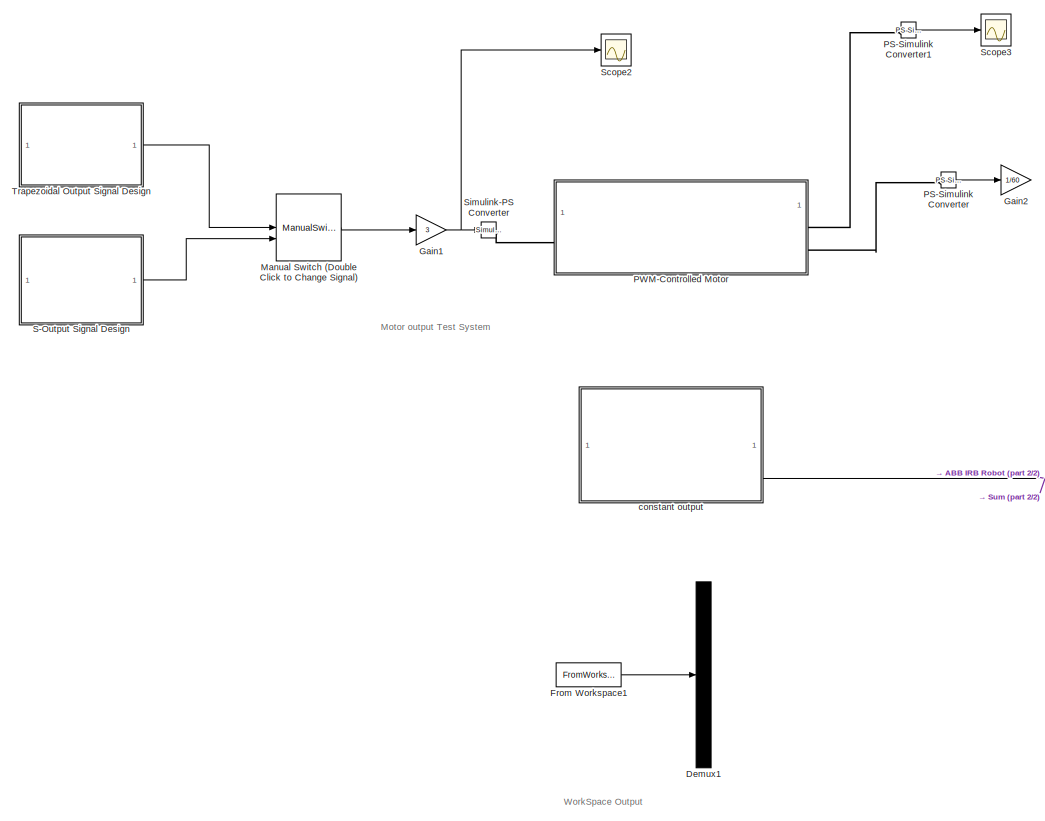
[diagram: root canvas - part 1/2, left side, full height]
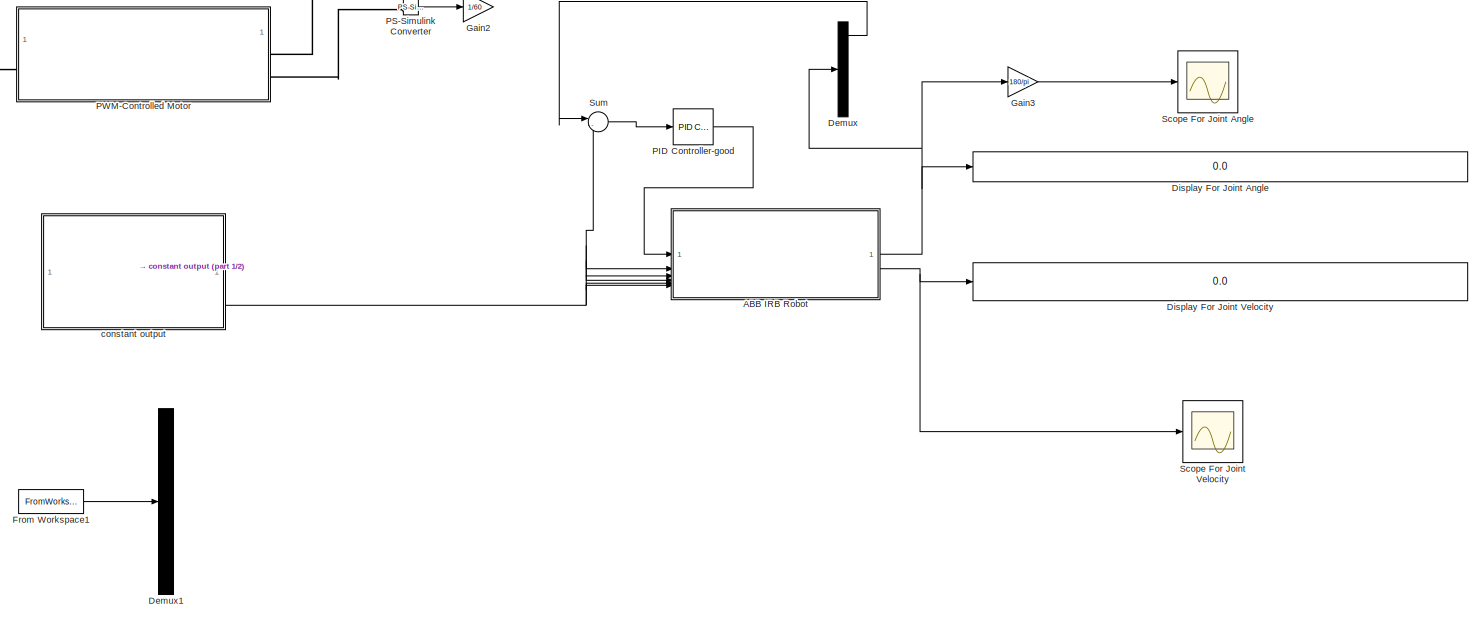
[diagram: root canvas - part 2/2, most of the canvas]
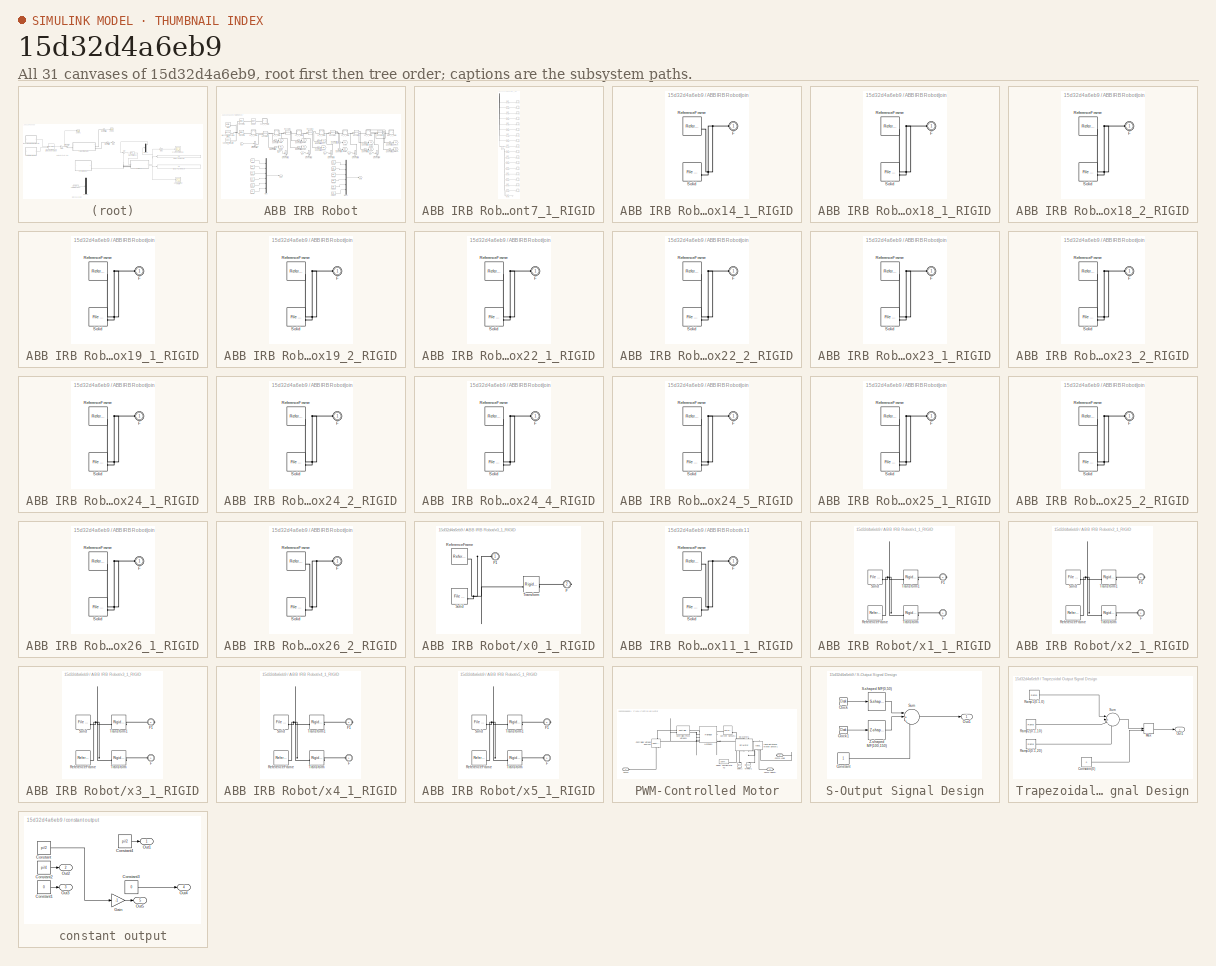
[diagram: thumbnail index - all 31 canvases of the model, root first then tree order]
MODEL slx_15d32d4a6eb9
KIND model
CONFIG AbsTol = auto
CONFIG EnableMultiTasking = off
CONFIG FixedStep = 0.02
CONFIG MaxStep = 0.01
CONFIG MinStep = auto
CONFIG RelTol = 1e-3
CONFIG SampleTimeConstraint = Unconstrained
CONFIG SolverName = VariableStepAuto
CONFIG StartTime = 0.0
CONFIG StopTime = 3
WORKSPACE source: external: MATLAB File  (data not in archive)
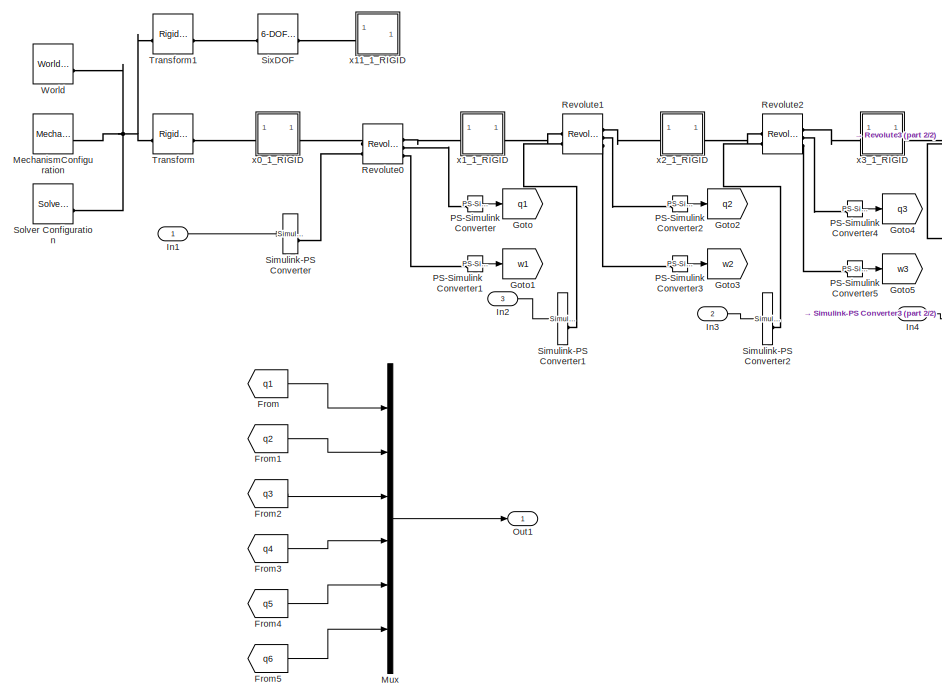
[diagram: ABB IRB Robot - part 1/2, left side, full height]
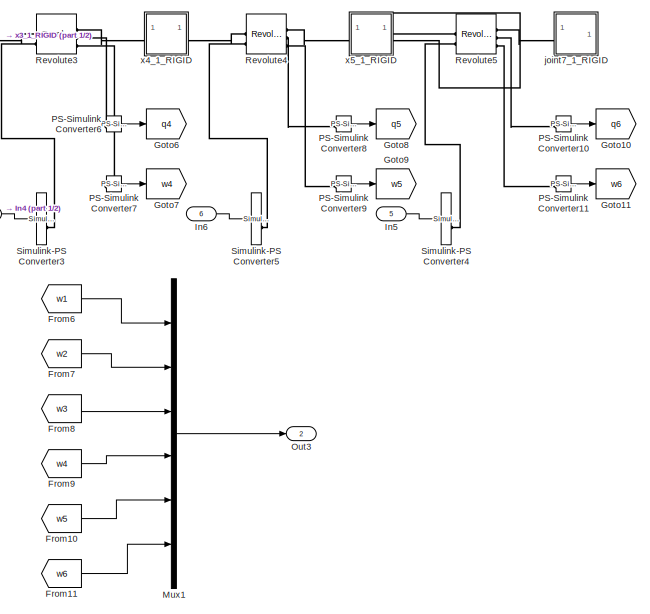
[diagram: ABB IRB Robot - part 2/2, right side, full height]
BLOCK [SubSystem] ABB IRB Robot
BLOCK [From] ABB IRB Robot/From
  GotoTag = q1
BLOCK [From] ABB IRB Robot/From1
  GotoTag = q2
BLOCK [From] ABB IRB Robot/From10
  GotoTag = w5
BLOCK [From] ABB IRB Robot/From11
  GotoTag = w6
BLOCK [From] ABB IRB Robot/From2
  GotoTag = q3
BLOCK [From] ABB IRB Robot/From3
  GotoTag = q4
BLOCK [From] ABB IRB Robot/From4
  GotoTag = q5
BLOCK [From] ABB IRB Robot/From5
  GotoTag = q6
BLOCK [From] ABB IRB Robot/From6
  GotoTag = w1
BLOCK [From] ABB IRB Robot/From7
  GotoTag = w2
BLOCK [From] ABB IRB Robot/From8
  GotoTag = w3
BLOCK [From] ABB IRB Robot/From9
  GotoTag = w4
BLOCK [Goto] ABB IRB Robot/Goto
  GotoTag = q1
BLOCK [Goto] ABB IRB Robot/Goto1
  GotoTag = w1
BLOCK [Goto] ABB IRB Robot/Goto10
  GotoTag = q6
BLOCK [Goto] ABB IRB Robot/Goto11
  GotoTag = w6
BLOCK [Goto] ABB IRB Robot/Goto2
  GotoTag = q2
BLOCK [Goto] ABB IRB Robot/Goto3
  GotoTag = w2
BLOCK [Goto] ABB IRB Robot/Goto4
  GotoTag = q3
BLOCK [Goto] ABB IRB Robot/Goto5
  GotoTag = w3
BLOCK [Goto] ABB IRB Robot/Goto6
  GotoTag = q4
BLOCK [Goto] ABB IRB Robot/Goto7
  GotoTag = w4
BLOCK [Goto] ABB IRB Robot/Goto8
  GotoTag = q5
BLOCK [Goto] ABB IRB Robot/Goto9
  GotoTag = w5
BLOCK [Inport] ABB IRB Robot/In1
BLOCK [Inport] ABB IRB Robot/In2
  Port = 3
BLOCK [Inport] ABB IRB Robot/In3
  Port = 2
BLOCK [Inport] ABB IRB Robot/In4
  Port = 4
BLOCK [Inport] ABB IRB Robot/In5
  Port = 5
BLOCK [Inport] ABB IRB Robot/In6
  Port = 6
BLOCK [Reference] ABB IRB Robot/MechanismConfiguration  REF=sm_lib/Utilities/Mechanism
Configuration
  SourceBlock = sm_lib/Utilities/Mechanism\nConfiguration
  SourceType = Mechanism\nConfiguration
BLOCK [Mux] ABB IRB Robot/Mux
  DisplayOption = bar
  Inputs = 6
BLOCK [Mux] ABB IRB Robot/Mux1
  DisplayOption = bar
  Inputs = 6
BLOCK [Outport] ABB IRB Robot/Out1
BLOCK [Outport] ABB IRB Robot/Out3
  Port = 2
BLOCK [Reference] ABB IRB Robot/PS-Simulink Converter  REF=nesl_utility/PS-Simulink
Converter
  NameLocation = right
  SourceBlock = nesl_utility/PS-Simulink\nConverter
  SourceType = PS-Simulink\nConverter
BLOCK [Reference] ABB IRB Robot/PS-Simulink Converter1  REF=nesl_utility/PS-Simulink
Converter
  SourceBlock = nesl_utility/PS-Simulink\nConverter
  SourceType = PS-Simulink\nConverter
BLOCK [Reference] ABB IRB Robot/PS-Simulink Converter10  REF=nesl_utility/PS-Simulink
Converter
  NameLocation = right
  SourceBlock = nesl_utility/PS-Simulink\nConverter
  SourceType = PS-Simulink\nConverter
BLOCK [Reference] ABB IRB Robot/PS-Simulink Converter11  REF=nesl_utility/PS-Simulink
Converter
  NameLocation = right
  SourceBlock = nesl_utility/PS-Simulink\nConverter
  SourceType = PS-Simulink\nConverter
BLOCK [Reference] ABB IRB Robot/PS-Simulink Converter2  REF=nesl_utility/PS-Simulink
Converter
  NameLocation = right
  SourceBlock = nesl_utility/PS-Simulink\nConverter
  SourceType = PS-Simulink\nConverter
BLOCK [Reference] ABB IRB Robot/PS-Simulink Converter3  REF=nesl_utility/PS-Simulink
Converter
  SourceBlock = nesl_utility/PS-Simulink\nConverter
  SourceType = PS-Simulink\nConverter
BLOCK [Reference] ABB IRB Robot/PS-Simulink Converter4  REF=nesl_utility/PS-Simulink
Converter
  NameLocation = right
  SourceBlock = nesl_utility/PS-Simulink\nConverter
  SourceType = PS-Simulink\nConverter
BLOCK [Reference] ABB IRB Robot/PS-Simulink Converter5  REF=nesl_utility/PS-Simulink
Converter
  SourceBlock = nesl_utility/PS-Simulink\nConverter
  SourceType = PS-Simulink\nConverter
BLOCK [Reference] ABB IRB Robot/PS-Simulink Converter6  REF=nesl_utility/PS-Simulink
Converter
  NameLocation = right
  SourceBlock = nesl_utility/PS-Simulink\nConverter
  SourceType = PS-Simulink\nConverter
BLOCK [Reference] ABB IRB Robot/PS-Simulink Converter7  REF=nesl_utility/PS-Simulink
Converter
  NameLocation = right
  SourceBlock = nesl_utility/PS-Simulink\nConverter
  SourceType = PS-Simulink\nConverter
BLOCK [Reference] ABB IRB Robot/PS-Simulink Converter8  REF=nesl_utility/PS-Simulink
Converter
  NameLocation = right
  SourceBlock = nesl_utility/PS-Simulink\nConverter
  SourceType = PS-Simulink\nConverter
BLOCK [Reference] ABB IRB Robot/PS-Simulink Converter9  REF=nesl_utility/PS-Simulink
Converter
  NameLocation = right
  SourceBlock = nesl_utility/PS-Simulink\nConverter
  SourceType = PS-Simulink\nConverter
BLOCK [Reference] ABB IRB Robot/Revolute0  REF=sm_lib/Joints/Revolute Joint
  SourceBlock = sm_lib/Joints/Revolute Joint
  SourceType = Revolute Joint
BLOCK [Reference] ABB IRB Robot/Revolute1  REF=sm_lib/Joints/Revolute Joint
  SourceBlock = sm_lib/Joints/Revolute Joint
  SourceType = Revolute Joint
BLOCK [Reference] ABB IRB Robot/Revolute2  REF=sm_lib/Joints/Revolute Joint
  SourceBlock = sm_lib/Joints/Revolute Joint
  SourceType = Revolute Joint
BLOCK [Reference] ABB IRB Robot/Revolute3  REF=sm_lib/Joints/Revolute Joint
  SourceBlock = sm_lib/Joints/Revolute Joint
  SourceType = Revolute Joint
BLOCK [Reference] ABB IRB Robot/Revolute4  REF=sm_lib/Joints/Revolute Joint
  SourceBlock = sm_lib/Joints/Revolute Joint
  SourceType = Revolute Joint
BLOCK [Reference] ABB IRB Robot/Revolute5  REF=sm_lib/Joints/Revolute Joint
  SourceBlock = sm_lib/Joints/Revolute Joint
  SourceType = Revolute Joint
BLOCK [Reference] ABB IRB Robot/Simulink-PS Converter  REF=nesl_utility/Simulink-PS
Converter
  SourceBlock = nesl_utility/Simulink-PS\nConverter
  SourceType = Simulink-PS\nConverter
BLOCK [Reference] ABB IRB Robot/Simulink-PS Converter1  REF=nesl_utility/Simulink-PS
Converter
  SourceBlock = nesl_utility/Simulink-PS\nConverter
  SourceType = Simulink-PS\nConverter
BLOCK [Reference] ABB IRB Robot/Simulink-PS Converter2  REF=nesl_utility/Simulink-PS
Converter
  SourceBlock = nesl_utility/Simulink-PS\nConverter
  SourceType = Simulink-PS\nConverter
BLOCK [Reference] ABB IRB Robot/Simulink-PS Converter3  REF=nesl_utility/Simulink-PS
Converter
  SourceBlock = nesl_utility/Simulink-PS\nConverter
  SourceType = Simulink-PS\nConverter
BLOCK [Reference] ABB IRB Robot/Simulink-PS Converter4  REF=nesl_utility/Simulink-PS
Converter
  SourceBlock = nesl_utility/Simulink-PS\nConverter
  SourceType = Simulink-PS\nConverter
BLOCK [Reference] ABB IRB Robot/Simulink-PS Converter5  REF=nesl_utility/Simulink-PS
Converter
  SourceBlock = nesl_utility/Simulink-PS\nConverter
  SourceType = Simulink-PS\nConverter
BLOCK [Reference] ABB IRB Robot/SixDOF  REF=sm_lib/Joints/6-DOF Joint
  SourceBlock = sm_lib/Joints/6-DOF Joint
  SourceType = 6-DOF Joint
BLOCK [Reference] ABB IRB Robot/Solver Configuration  REF=nesl_utility/Solver
Configuration
  SourceBlock = nesl_utility/Solver\nConfiguration
  SourceType = Solver\nConfiguration
BLOCK [Reference] ABB IRB Robot/Transform  REF=sm_lib/Frames and
Transforms/Rigid
Transform
  SourceBlock = sm_lib/Frames and\nTransforms/Rigid\nTransform
  SourceType = Rigid\nTransform
BLOCK [Reference] ABB IRB Robot/Transform1  REF=sm_lib/Frames and
Transforms/Rigid
Transform
  SourceBlock = sm_lib/Frames and\nTransforms/Rigid\nTransform
  SourceType = Rigid\nTransform
BLOCK [Reference] ABB IRB Robot/World  REF=sm_lib/Frames and
Transforms/World Frame
  SourceBlock = sm_lib/Frames and\nTransforms/World Frame
  SourceType = World Frame
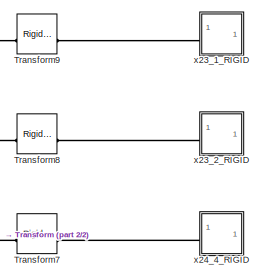
[diagram: ABB IRB Robot/joint7_1_RIGID - part 1/2, top center region]
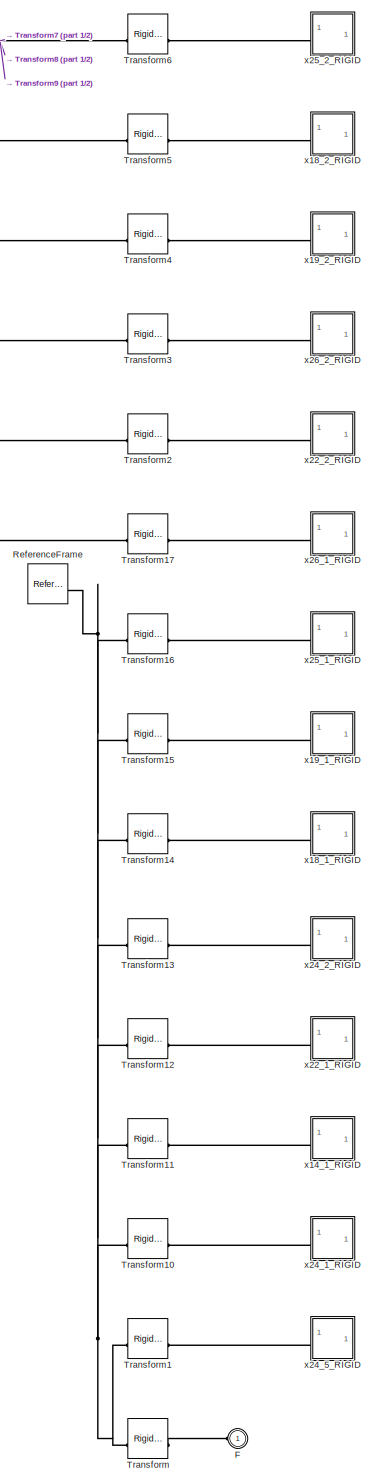
[diagram: ABB IRB Robot/joint7_1_RIGID - part 2/2, most of the canvas]
BLOCK [SubSystem] ABB IRB Robot/joint7_1_RIGID
BLOCK [PMIOPort] ABB IRB Robot/joint7_1_RIGID/F
  Side = Left
BLOCK [Reference] ABB IRB Robot/joint7_1_RIGID/ReferenceFrame  REF=sm_lib/Frames and
Transforms/Reference
Frame
  SourceBlock = sm_lib/Frames and\nTransforms/Reference\nFrame
  SourceType = Reference\nFrame
BLOCK [Reference] ABB IRB Robot/joint7_1_RIGID/Transform  REF=sm_lib/Frames and
Transforms/Rigid
Transform
  SourceBlock = sm_lib/Frames and\nTransforms/Rigid\nTransform
  SourceType = Rigid\nTransform
BLOCK [Reference] ABB IRB Robot/joint7_1_RIGID/Transform1  REF=sm_lib/Frames and
Transforms/Rigid
Transform
  SourceBlock = sm_lib/Frames and\nTransforms/Rigid\nTransform
  SourceType = Rigid\nTransform
BLOCK [Reference] ABB IRB Robot/joint7_1_RIGID/Transform10  REF=sm_lib/Frames and
Transforms/Rigid
Transform
  SourceBlock = sm_lib/Frames and\nTransforms/Rigid\nTransform
  SourceType = Rigid\nTransform
BLOCK [Reference] ABB IRB Robot/joint7_1_RIGID/Transform11  REF=sm_lib/Frames and
Transforms/Rigid
Transform
  SourceBlock = sm_lib/Frames and\nTransforms/Rigid\nTransform
  SourceType = Rigid\nTransform
BLOCK [Reference] ABB IRB Robot/joint7_1_RIGID/Transform12  REF=sm_lib/Frames and
Transforms/Rigid
Transform
  SourceBlock = sm_lib/Frames and\nTransforms/Rigid\nTransform
  SourceType = Rigid\nTransform
BLOCK [Reference] ABB IRB Robot/joint7_1_RIGID/Transform13  REF=sm_lib/Frames and
Transforms/Rigid
Transform
  SourceBlock = sm_lib/Frames and\nTransforms/Rigid\nTransform
  SourceType = Rigid\nTransform
BLOCK [Reference] ABB IRB Robot/joint7_1_RIGID/Transform14  REF=sm_lib/Frames and
Transforms/Rigid
Transform
  SourceBlock = sm_lib/Frames and\nTransforms/Rigid\nTransform
  SourceType = Rigid\nTransform
BLOCK [Reference] ABB IRB Robot/joint7_1_RIGID/Transform15  REF=sm_lib/Frames and
Transforms/Rigid
Transform
  SourceBlock = sm_lib/Frames and\nTransforms/Rigid\nTransform
  SourceType = Rigid\nTransform
BLOCK [Reference] ABB IRB Robot/joint7_1_RIGID/Transform16  REF=sm_lib/Frames and
Transforms/Rigid
Transform
  SourceBlock = sm_lib/Frames and\nTransforms/Rigid\nTransform
  SourceType = Rigid\nTransform
BLOCK [Reference] ABB IRB Robot/joint7_1_RIGID/Transform17  REF=sm_lib/Frames and
Transforms/Rigid
Transform
  SourceBlock = sm_lib/Frames and\nTransforms/Rigid\nTransform
  SourceType = Rigid\nTransform
BLOCK [Reference] ABB IRB Robot/joint7_1_RIGID/Transform2  REF=sm_lib/Frames and
Transforms/Rigid
Transform
  SourceBlock = sm_lib/Frames and\nTransforms/Rigid\nTransform
  SourceType = Rigid\nTransform
BLOCK [Reference] ABB IRB Robot/joint7_1_RIGID/Transform3  REF=sm_lib/Frames and
Transforms/Rigid
Transform
  SourceBlock = sm_lib/Frames and\nTransforms/Rigid\nTransform
  SourceType = Rigid\nTransform
BLOCK [Reference] ABB IRB Robot/joint7_1_RIGID/Transform4  REF=sm_lib/Frames and
Transforms/Rigid
Transform
  SourceBlock = sm_lib/Frames and\nTransforms/Rigid\nTransform
  SourceType = Rigid\nTransform
BLOCK [Reference] ABB IRB Robot/joint7_1_RIGID/Transform5  REF=sm_lib/Frames and
Transforms/Rigid
Transform
  SourceBlock = sm_lib/Frames and\nTransforms/Rigid\nTransform
  SourceType = Rigid\nTransform
BLOCK [Reference] ABB IRB Robot/joint7_1_RIGID/Transform6  REF=sm_lib/Frames and
Transforms/Rigid
Transform
  SourceBlock = sm_lib/Frames and\nTransforms/Rigid\nTransform
  SourceType = Rigid\nTransform
BLOCK [Reference] ABB IRB Robot/joint7_1_RIGID/Transform7  REF=sm_lib/Frames and
Transforms/Rigid
Transform
  SourceBlock = sm_lib/Frames and\nTransforms/Rigid\nTransform
  SourceType = Rigid\nTransform
BLOCK [Reference] ABB IRB Robot/joint7_1_RIGID/Transform8  REF=sm_lib/Frames and
Transforms/Rigid
Transform
  SourceBlock = sm_lib/Frames and\nTransforms/Rigid\nTransform
  SourceType = Rigid\nTransform
BLOCK [Reference] ABB IRB Robot/joint7_1_RIGID/Transform9  REF=sm_lib/Frames and
Transforms/Rigid
Transform
  SourceBlock = sm_lib/Frames and\nTransforms/Rigid\nTransform
  SourceType = Rigid\nTransform
BLOCK [SubSystem] ABB IRB Robot/joint7_1_RIGID/x14_1_RIGID
BLOCK [PMIOPort] ABB IRB Robot/joint7_1_RIGID/x14_1_RIGID/F
  Side = Left
BLOCK [Reference] ABB IRB Robot/joint7_1_RIGID/x14_1_RIGID/ReferenceFrame  REF=sm_lib/Frames and
Transforms/Reference
Frame
  SourceBlock = sm_lib/Frames and\nTransforms/Reference\nFrame
  SourceType = Reference\nFrame
BLOCK [Reference] ABB IRB Robot/joint7_1_RIGID/x14_1_RIGID/Solid  REF=sm_lib/Body Elements/File Solid
  SourceBlock = sm_lib/Body Elements/File Solid
  SourceType = File Solid
BLOCK [SubSystem] ABB IRB Robot/joint7_1_RIGID/x18_1_RIGID
BLOCK [PMIOPort] ABB IRB Robot/joint7_1_RIGID/x18_1_RIGID/F
  Side = Left
BLOCK [Reference] ABB IRB Robot/joint7_1_RIGID/x18_1_RIGID/ReferenceFrame  REF=sm_lib/Frames and
Transforms/Reference
Frame
  SourceBlock = sm_lib/Frames and\nTransforms/Reference\nFrame
  SourceType = Reference\nFrame
BLOCK [Reference] ABB IRB Robot/joint7_1_RIGID/x18_1_RIGID/Solid  REF=sm_lib/Body Elements/File Solid
  SourceBlock = sm_lib/Body Elements/File Solid
  SourceType = File Solid
BLOCK [SubSystem] ABB IRB Robot/joint7_1_RIGID/x18_2_RIGID
BLOCK [PMIOPort] ABB IRB Robot/joint7_1_RIGID/x18_2_RIGID/F
  Side = Left
BLOCK [Reference] ABB IRB Robot/joint7_1_RIGID/x18_2_RIGID/ReferenceFrame  REF=sm_lib/Frames and
Transforms/Reference
Frame
  SourceBlock = sm_lib/Frames and\nTransforms/Reference\nFrame
  SourceType = Reference\nFrame
BLOCK [Reference] ABB IRB Robot/joint7_1_RIGID/x18_2_RIGID/Solid  REF=sm_lib/Body Elements/File Solid
  SourceBlock = sm_lib/Body Elements/File Solid
  SourceType = File Solid
BLOCK [SubSystem] ABB IRB Robot/joint7_1_RIGID/x19_1_RIGID
BLOCK [PMIOPort] ABB IRB Robot/joint7_1_RIGID/x19_1_RIGID/F
  Side = Left
BLOCK [Reference] ABB IRB Robot/joint7_1_RIGID/x19_1_RIGID/ReferenceFrame  REF=sm_lib/Frames and
Transforms/Reference
Frame
  SourceBlock = sm_lib/Frames and\nTransforms/Reference\nFrame
  SourceType = Reference\nFrame
BLOCK [Reference] ABB IRB Robot/joint7_1_RIGID/x19_1_RIGID/Solid  REF=sm_lib/Body Elements/File Solid
  SourceBlock = sm_lib/Body Elements/File Solid
  SourceType = File Solid
BLOCK [SubSystem] ABB IRB Robot/joint7_1_RIGID/x19_2_RIGID
BLOCK [PMIOPort] ABB IRB Robot/joint7_1_RIGID/x19_2_RIGID/F
  Side = Left
BLOCK [Reference] ABB IRB Robot/joint7_1_RIGID/x19_2_RIGID/ReferenceFrame  REF=sm_lib/Frames and
Transforms/Reference
Frame
  SourceBlock = sm_lib/Frames and\nTransforms/Reference\nFrame
  SourceType = Reference\nFrame
BLOCK [Reference] ABB IRB Robot/joint7_1_RIGID/x19_2_RIGID/Solid  REF=sm_lib/Body Elements/File Solid
  SourceBlock = sm_lib/Body Elements/File Solid
  SourceType = File Solid
BLOCK [SubSystem] ABB IRB Robot/joint7_1_RIGID/x22_1_RIGID
BLOCK [PMIOPort] ABB IRB Robot/joint7_1_RIGID/x22_1_RIGID/F
  Side = Left
BLOCK [Reference] ABB IRB Robot/joint7_1_RIGID/x22_1_RIGID/ReferenceFrame  REF=sm_lib/Frames and
Transforms/Reference
Frame
  SourceBlock = sm_lib/Frames and\nTransforms/Reference\nFrame
  SourceType = Reference\nFrame
BLOCK [Reference] ABB IRB Robot/joint7_1_RIGID/x22_1_RIGID/Solid  REF=sm_lib/Body Elements/File Solid
  SourceBlock = sm_lib/Body Elements/File Solid
  SourceType = File Solid
BLOCK [SubSystem] ABB IRB Robot/joint7_1_RIGID/x22_2_RIGID
BLOCK [PMIOPort] ABB IRB Robot/joint7_1_RIGID/x22_2_RIGID/F
  Side = Left
BLOCK [Reference] ABB IRB Robot/joint7_1_RIGID/x22_2_RIGID/ReferenceFrame  REF=sm_lib/Frames and
Transforms/Reference
Frame
  SourceBlock = sm_lib/Frames and\nTransforms/Reference\nFrame
  SourceType = Reference\nFrame
BLOCK [Reference] ABB IRB Robot/joint7_1_RIGID/x22_2_RIGID/Solid  REF=sm_lib/Body Elements/File Solid
  SourceBlock = sm_lib/Body Elements/File Solid
  SourceType = File Solid
BLOCK [SubSystem] ABB IRB Robot/joint7_1_RIGID/x23_1_RIGID
BLOCK [PMIOPort] ABB IRB Robot/joint7_1_RIGID/x23_1_RIGID/F
  Side = Left
BLOCK [Reference] ABB IRB Robot/joint7_1_RIGID/x23_1_RIGID/ReferenceFrame  REF=sm_lib/Frames and
Transforms/Reference
Frame
  SourceBlock = sm_lib/Frames and\nTransforms/Reference\nFrame
  SourceType = Reference\nFrame
BLOCK [Reference] ABB IRB Robot/joint7_1_RIGID/x23_1_RIGID/Solid  REF=sm_lib/Body Elements/File Solid
  SourceBlock = sm_lib/Body Elements/File Solid
  SourceType = File Solid
BLOCK [SubSystem] ABB IRB Robot/joint7_1_RIGID/x23_2_RIGID
BLOCK [PMIOPort] ABB IRB Robot/joint7_1_RIGID/x23_2_RIGID/F
  Side = Left
BLOCK [Reference] ABB IRB Robot/joint7_1_RIGID/x23_2_RIGID/ReferenceFrame  REF=sm_lib/Frames and
Transforms/Reference
Frame
  SourceBlock = sm_lib/Frames and\nTransforms/Reference\nFrame
  SourceType = Reference\nFrame
BLOCK [Reference] ABB IRB Robot/joint7_1_RIGID/x23_2_RIGID/Solid  REF=sm_lib/Body Elements/File Solid
  SourceBlock = sm_lib/Body Elements/File Solid
  SourceType = File Solid
BLOCK [SubSystem] ABB IRB Robot/joint7_1_RIGID/x24_1_RIGID
BLOCK [PMIOPort] ABB IRB Robot/joint7_1_RIGID/x24_1_RIGID/F
  Side = Left
BLOCK [Reference] ABB IRB Robot/joint7_1_RIGID/x24_1_RIGID/ReferenceFrame  REF=sm_lib/Frames and
Transforms/Reference
Frame
  SourceBlock = sm_lib/Frames and\nTransforms/Reference\nFrame
  SourceType = Reference\nFrame
BLOCK [Reference] ABB IRB Robot/joint7_1_RIGID/x24_1_RIGID/Solid  REF=sm_lib/Body Elements/File Solid
  SourceBlock = sm_lib/Body Elements/File Solid
  SourceType = File Solid
BLOCK [SubSystem] ABB IRB Robot/joint7_1_RIGID/x24_2_RIGID
BLOCK [PMIOPort] ABB IRB Robot/joint7_1_RIGID/x24_2_RIGID/F
  Side = Left
BLOCK [Reference] ABB IRB Robot/joint7_1_RIGID/x24_2_RIGID/ReferenceFrame  REF=sm_lib/Frames and
Transforms/Reference
Frame
  SourceBlock = sm_lib/Frames and\nTransforms/Reference\nFrame
  SourceType = Reference\nFrame
BLOCK [Reference] ABB IRB Robot/joint7_1_RIGID/x24_2_RIGID/Solid  REF=sm_lib/Body Elements/File Solid
  SourceBlock = sm_lib/Body Elements/File Solid
  SourceType = File Solid
BLOCK [SubSystem] ABB IRB Robot/joint7_1_RIGID/x24_4_RIGID
BLOCK [PMIOPort] ABB IRB Robot/joint7_1_RIGID/x24_4_RIGID/F
  Side = Left
BLOCK [Reference] ABB IRB Robot/joint7_1_RIGID/x24_4_RIGID/ReferenceFrame  REF=sm_lib/Frames and
Transforms/Reference
Frame
  SourceBlock = sm_lib/Frames and\nTransforms/Reference\nFrame
  SourceType = Reference\nFrame
BLOCK [Reference] ABB IRB Robot/joint7_1_RIGID/x24_4_RIGID/Solid  REF=sm_lib/Body Elements/File Solid
  SourceBlock = sm_lib/Body Elements/File Solid
  SourceType = File Solid
BLOCK [SubSystem] ABB IRB Robot/joint7_1_RIGID/x24_5_RIGID
BLOCK [PMIOPort] ABB IRB Robot/joint7_1_RIGID/x24_5_RIGID/F
  Side = Left
BLOCK [Reference] ABB IRB Robot/joint7_1_RIGID/x24_5_RIGID/ReferenceFrame  REF=sm_lib/Frames and
Transforms/Reference
Frame
  SourceBlock = sm_lib/Frames and\nTransforms/Reference\nFrame
  SourceType = Reference\nFrame
BLOCK [Reference] ABB IRB Robot/joint7_1_RIGID/x24_5_RIGID/Solid  REF=sm_lib/Body Elements/File Solid
  SourceBlock = sm_lib/Body Elements/File Solid
  SourceType = File Solid
BLOCK [SubSystem] ABB IRB Robot/joint7_1_RIGID/x25_1_RIGID
BLOCK [PMIOPort] ABB IRB Robot/joint7_1_RIGID/x25_1_RIGID/F
  Side = Left
BLOCK [Reference] ABB IRB Robot/joint7_1_RIGID/x25_1_RIGID/ReferenceFrame  REF=sm_lib/Frames and
Transforms/Reference
Frame
  SourceBlock = sm_lib/Frames and\nTransforms/Reference\nFrame
  SourceType = Reference\nFrame
BLOCK [Reference] ABB IRB Robot/joint7_1_RIGID/x25_1_RIGID/Solid  REF=sm_lib/Body Elements/File Solid
  SourceBlock = sm_lib/Body Elements/File Solid
  SourceType = File Solid
BLOCK [SubSystem] ABB IRB Robot/joint7_1_RIGID/x25_2_RIGID
BLOCK [PMIOPort] ABB IRB Robot/joint7_1_RIGID/x25_2_RIGID/F
  Side = Left
BLOCK [Reference] ABB IRB Robot/joint7_1_RIGID/x25_2_RIGID/ReferenceFrame  REF=sm_lib/Frames and
Transforms/Reference
Frame
  SourceBlock = sm_lib/Frames and\nTransforms/Reference\nFrame
  SourceType = Reference\nFrame
BLOCK [Reference] ABB IRB Robot/joint7_1_RIGID/x25_2_RIGID/Solid  REF=sm_lib/Body Elements/File Solid
  SourceBlock = sm_lib/Body Elements/File Solid
  SourceType = File Solid
BLOCK [SubSystem] ABB IRB Robot/joint7_1_RIGID/x26_1_RIGID
BLOCK [PMIOPort] ABB IRB Robot/joint7_1_RIGID/x26_1_RIGID/F
  Side = Left
BLOCK [Reference] ABB IRB Robot/joint7_1_RIGID/x26_1_RIGID/ReferenceFrame  REF=sm_lib/Frames and
Transforms/Reference
Frame
  SourceBlock = sm_lib/Frames and\nTransforms/Reference\nFrame
  SourceType = Reference\nFrame
BLOCK [Reference] ABB IRB Robot/joint7_1_RIGID/x26_1_RIGID/Solid  REF=sm_lib/Body Elements/File Solid
  SourceBlock = sm_lib/Body Elements/File Solid
  SourceType = File Solid
BLOCK [SubSystem] ABB IRB Robot/joint7_1_RIGID/x26_2_RIGID
BLOCK [PMIOPort] ABB IRB Robot/joint7_1_RIGID/x26_2_RIGID/F
  Side = Left
BLOCK [Reference] ABB IRB Robot/joint7_1_RIGID/x26_2_RIGID/ReferenceFrame  REF=sm_lib/Frames and
Transforms/Reference
Frame
  SourceBlock = sm_lib/Frames and\nTransforms/Reference\nFrame
  SourceType = Reference\nFrame
BLOCK [Reference] ABB IRB Robot/joint7_1_RIGID/x26_2_RIGID/Solid  REF=sm_lib/Body Elements/File Solid
  SourceBlock = sm_lib/Body Elements/File Solid
  SourceType = File Solid
BLOCK [SubSystem] ABB IRB Robot/x0_1_RIGID
BLOCK [PMIOPort] ABB IRB Robot/x0_1_RIGID/F
  Port = 2
  Side = Right
BLOCK [PMIOPort] ABB IRB Robot/x0_1_RIGID/F1
  Side = Left
BLOCK [Reference] ABB IRB Robot/x0_1_RIGID/ReferenceFrame  REF=sm_lib/Frames and
Transforms/Reference
Frame
  SourceBlock = sm_lib/Frames and\nTransforms/Reference\nFrame
  SourceType = Reference\nFrame
BLOCK [Reference] ABB IRB Robot/x0_1_RIGID/Solid  REF=sm_lib/Body Elements/File Solid
  SourceBlock = sm_lib/Body Elements/File Solid
  SourceType = File Solid
BLOCK [Reference] ABB IRB Robot/x0_1_RIGID/Transform  REF=sm_lib/Frames and
Transforms/Rigid
Transform
  SourceBlock = sm_lib/Frames and\nTransforms/Rigid\nTransform
  SourceType = Rigid\nTransform
BLOCK [SubSystem] ABB IRB Robot/x11_1_RIGID
BLOCK [PMIOPort] ABB IRB Robot/x11_1_RIGID/F
  Side = Left
BLOCK [Reference] ABB IRB Robot/x11_1_RIGID/ReferenceFrame  REF=sm_lib/Frames and
Transforms/Reference
Frame
  SourceBlock = sm_lib/Frames and\nTransforms/Reference\nFrame
  SourceType = Reference\nFrame
BLOCK [Reference] ABB IRB Robot/x11_1_RIGID/Solid  REF=sm_lib/Body Elements/File Solid
  SourceBlock = sm_lib/Body Elements/File Solid
  SourceType = File Solid
BLOCK [SubSystem] ABB IRB Robot/x1_1_RIGID
BLOCK [PMIOPort] ABB IRB Robot/x1_1_RIGID/F
  Side = Left
BLOCK [PMIOPort] ABB IRB Robot/x1_1_RIGID/F1
  Port = 2
  Side = Right
BLOCK [Reference] ABB IRB Robot/x1_1_RIGID/ReferenceFrame  REF=sm_lib/Frames and
Transforms/Reference
Frame
  SourceBlock = sm_lib/Frames and\nTransforms/Reference\nFrame
  SourceType = Reference\nFrame
BLOCK [Reference] ABB IRB Robot/x1_1_RIGID/Solid  REF=sm_lib/Body Elements/File Solid
  SourceBlock = sm_lib/Body Elements/File Solid
  SourceType = File Solid
BLOCK [Reference] ABB IRB Robot/x1_1_RIGID/Transform  REF=sm_lib/Frames and
Transforms/Rigid
Transform
  SourceBlock = sm_lib/Frames and\nTransforms/Rigid\nTransform
  SourceType = Rigid\nTransform
BLOCK [Reference] ABB IRB Robot/x1_1_RIGID/Transform1  REF=sm_lib/Frames and
Transforms/Rigid
Transform
  SourceBlock = sm_lib/Frames and\nTransforms/Rigid\nTransform
  SourceType = Rigid\nTransform
BLOCK [SubSystem] ABB IRB Robot/x2_1_RIGID
BLOCK [PMIOPort] ABB IRB Robot/x2_1_RIGID/F
  Side = Left
BLOCK [PMIOPort] ABB IRB Robot/x2_1_RIGID/F1
  Port = 2
  Side = Right
BLOCK [Reference] ABB IRB Robot/x2_1_RIGID/ReferenceFrame  REF=sm_lib/Frames and
Transforms/Reference
Frame
  SourceBlock = sm_lib/Frames and\nTransforms/Reference\nFrame
  SourceType = Reference\nFrame
BLOCK [Reference] ABB IRB Robot/x2_1_RIGID/Solid  REF=sm_lib/Body Elements/File Solid
  SourceBlock = sm_lib/Body Elements/File Solid
  SourceType = File Solid
BLOCK [Reference] ABB IRB Robot/x2_1_RIGID/Transform  REF=sm_lib/Frames and
Transforms/Rigid
Transform
  SourceBlock = sm_lib/Frames and\nTransforms/Rigid\nTransform
  SourceType = Rigid\nTransform
BLOCK [Reference] ABB IRB Robot/x2_1_RIGID/Transform1  REF=sm_lib/Frames and
Transforms/Rigid
Transform
  SourceBlock = sm_lib/Frames and\nTransforms/Rigid\nTransform
  SourceType = Rigid\nTransform
BLOCK [SubSystem] ABB IRB Robot/x3_1_RIGID
BLOCK [PMIOPort] ABB IRB Robot/x3_1_RIGID/F
  Side = Left
BLOCK [PMIOPort] ABB IRB Robot/x3_1_RIGID/F1
  Port = 2
  Side = Right
BLOCK [Reference] ABB IRB Robot/x3_1_RIGID/ReferenceFrame  REF=sm_lib/Frames and
Transforms/Reference
Frame
  SourceBlock = sm_lib/Frames and\nTransforms/Reference\nFrame
  SourceType = Reference\nFrame
BLOCK [Reference] ABB IRB Robot/x3_1_RIGID/Solid  REF=sm_lib/Body Elements/File Solid
  SourceBlock = sm_lib/Body Elements/File Solid
  SourceType = File Solid
BLOCK [Reference] ABB IRB Robot/x3_1_RIGID/Transform  REF=sm_lib/Frames and
Transforms/Rigid
Transform
  SourceBlock = sm_lib/Frames and\nTransforms/Rigid\nTransform
  SourceType = Rigid\nTransform
BLOCK [Reference] ABB IRB Robot/x3_1_RIGID/Transform1  REF=sm_lib/Frames and
Transforms/Rigid
Transform
  SourceBlock = sm_lib/Frames and\nTransforms/Rigid\nTransform
  SourceType = Rigid\nTransform
BLOCK [SubSystem] ABB IRB Robot/x4_1_RIGID
BLOCK [PMIOPort] ABB IRB Robot/x4_1_RIGID/F
  Side = Left
BLOCK [PMIOPort] ABB IRB Robot/x4_1_RIGID/F1
  Port = 2
  Side = Right
BLOCK [Reference] ABB IRB Robot/x4_1_RIGID/ReferenceFrame  REF=sm_lib/Frames and
Transforms/Reference
Frame
  SourceBlock = sm_lib/Frames and\nTransforms/Reference\nFrame
  SourceType = Reference\nFrame
BLOCK [Reference] ABB IRB Robot/x4_1_RIGID/Solid  REF=sm_lib/Body Elements/File Solid
  SourceBlock = sm_lib/Body Elements/File Solid
  SourceType = File Solid
BLOCK [Reference] ABB IRB Robot/x4_1_RIGID/Transform  REF=sm_lib/Frames and
Transforms/Rigid
Transform
  SourceBlock = sm_lib/Frames and\nTransforms/Rigid\nTransform
  SourceType = Rigid\nTransform
BLOCK [Reference] ABB IRB Robot/x4_1_RIGID/Transform1  REF=sm_lib/Frames and
Transforms/Rigid
Transform
  SourceBlock = sm_lib/Frames and\nTransforms/Rigid\nTransform
  SourceType = Rigid\nTransform
BLOCK [SubSystem] ABB IRB Robot/x5_1_RIGID
BLOCK [PMIOPort] ABB IRB Robot/x5_1_RIGID/F
  Side = Left
BLOCK [PMIOPort] ABB IRB Robot/x5_1_RIGID/F1
  Port = 2
  Side = Right
BLOCK [Reference] ABB IRB Robot/x5_1_RIGID/ReferenceFrame  REF=sm_lib/Frames and
Transforms/Reference
Frame
  SourceBlock = sm_lib/Frames and\nTransforms/Reference\nFrame
  SourceType = Reference\nFrame
BLOCK [Reference] ABB IRB Robot/x5_1_RIGID/Solid  REF=sm_lib/Body Elements/File Solid
  SourceBlock = sm_lib/Body Elements/File Solid
  SourceType = File Solid
BLOCK [Reference] ABB IRB Robot/x5_1_RIGID/Transform  REF=sm_lib/Frames and
Transforms/Rigid
Transform
  SourceBlock = sm_lib/Frames and\nTransforms/Rigid\nTransform
  SourceType = Rigid\nTransform
BLOCK [Reference] ABB IRB Robot/x5_1_RIGID/Transform1  REF=sm_lib/Frames and
Transforms/Rigid
Transform
  SourceBlock = sm_lib/Frames and\nTransforms/Rigid\nTransform
  SourceType = Rigid\nTransform
BLOCK [Demux] Demux
  Outputs = 6
BLOCK [Demux] Demux1
  Outputs = 6
BLOCK [Display] Display For Joint Angle
  Decimation = 1
BLOCK [Display] Display For Joint Velocity
  Decimation = 1
BLOCK [FromWorkspace] From Workspace1
  VariableName = data
BLOCK [Gain] Gain1
  Gain = 3
BLOCK [Gain] Gain2
  Gain = 1/60
BLOCK [Gain] Gain3
  Gain = 180/pi
BLOCK [ManualSwitch] Manual Switch (Double Click to Change Signal)
  CurrentSetting = 0
BLOCK [Reference] PID Controller-good  REF=slpidlib/PID Controller
  LibrarySourceBlock = simulink/Continuous/PID Controller
  SourceBlock = slpidlib/PID Controller
  SourceType = PID 1dof
BLOCK [Reference] PS-Simulink Converter  REF=nesl_utility/PS-Simulink
Converter
  SourceBlock = nesl_utility/PS-Simulink\nConverter
  SourceType = PS-Simulink\nConverter
BLOCK [Reference] PS-Simulink Converter1  REF=nesl_utility/PS-Simulink
Converter
  SourceBlock = nesl_utility/PS-Simulink\nConverter
  SourceType = PS-Simulink\nConverter
BLOCK [SubSystem] PWM-Controlled Motor
BLOCK [PMIOPort] PWM-Controlled Motor/Conn2-Velocity
  Port = 2
  Side = Right
BLOCK [PMIOPort] PWM-Controlled Motor/Conn3
  Side = Left
BLOCK [PMIOPort] PWM-Controlled Motor/Conn3-Angle
  Port = 3
  Side = Right
BLOCK [Reference] PWM-Controlled Motor/Controlled PWM Voltage1  REF=ee_lib/Integrated Circuits/Controlled PWM
Voltage
  SourceBlock = ee_lib/Integrated Circuits/Controlled PWM\nVoltage
  SourceType = Controlled PWM\nVoltage
BLOCK [Reference] PWM-Controlled Motor/Controlled Voltage Source1  REF=fl_lib/Electrical/Electrical Sources/Controlled Voltage
Source
  NameLocation = right
  SourceBlock = fl_lib/Electrical/Electrical Sources/Controlled Voltage\nSource
  SourceType = Controlled Voltage\nSource
BLOCK [Reference] PWM-Controlled Motor/Current Sensor1  REF=fl_lib/Electrical/Electrical Sensors/Current Sensor
  NameLocation = top
  SourceBlock = fl_lib/Electrical/Electrical Sensors/Current Sensor
  SourceType = Current Sensor
BLOCK [Reference] PWM-Controlled Motor/DC Motor1  REF=ee_lib/Electromechanical/Brushed Motors/DC Motor
  NameLocation = left
  SourceBlock = ee_lib/Electromechanical/Brushed Motors/DC Motor
  SourceType = DC Motor
BLOCK [Reference] PWM-Controlled Motor/ERef1  REF=fl_lib/Electrical/Electrical Elements/Electrical Reference
  NameLocation = left
  SourceBlock = fl_lib/Electrical/Electrical Elements/Electrical Reference
  SourceType = Electrical Reference
BLOCK [Reference] PWM-Controlled Motor/H-Bridge1  REF=ee_lib/Semiconductors &
Converters/Converters/H-Bridge
  SourceBlock = ee_lib/Semiconductors &\nConverters/Converters/H-Bridge
  SourceType = H-Bridge
BLOCK [Reference] PWM-Controlled Motor/Ideal Rotational Motion Sensor1  REF=fl_lib/Mechanical/Mechanical Sensors/Ideal Rotational
Motion Sensor
  NameLocation = right
  SourceBlock = fl_lib/Mechanical/Mechanical Sensors/Ideal Rotational\nMotion Sensor
  SourceType = Ideal Rotational\nMotion Sensor
BLOCK [Reference] PWM-Controlled Motor/MRRef1  REF=fl_lib/Mechanical/Rotational Elements/Mechanical
Rotational Reference
  NameLocation = right
  SourceBlock = fl_lib/Mechanical/Rotational Elements/Mechanical\nRotational Reference
  SourceType = Mechanical\nRotational Reference
BLOCK [Reference] PWM-Controlled Motor/Solver Configuration2  REF=nesl_utility/Solver
Configuration
  SourceBlock = nesl_utility/Solver\nConfiguration
  SourceType = Solver\nConfiguration
BLOCK [SubSystem] S-Output Signal Design
BLOCK [Clock] S-Output Signal Design/Clock
  Decimation = 100
BLOCK [Clock] S-Output Signal Design/Clock1
  Decimation = 100
BLOCK [Constant] S-Output Signal Design/Constant
BLOCK [Outport] S-Output Signal Design/Out1
BLOCK [Reference] S-Output Signal Design/S-shaped MF(0,50)  REF=fuzblock/Membership   (lib defined in mdl_858b3b3e7478)
Functions/S-shaped MF
  SourceBlock = fuzblock/Membership \nFunctions/S-shaped MF
  SourceType = S-shaped membership function
BLOCK [Sum] S-Output Signal Design/Sum
  Inputs = |++-
BLOCK [Reference] S-Output Signal Design/Z-shaped MF(100,150)  REF=fuzblock/Membership   (lib defined in mdl_858b3b3e7478)
Functions/Z-shaped MF
  SourceBlock = fuzblock/Membership \nFunctions/Z-shaped MF
  SourceType = Z-shaped membership function
BLOCK [Scope] Scope For Joint Angle
  Floating = off
  NumInputPorts = 1
  ScopeSpecificationString = Simulink.scopes.TimeScopeBlockCfg('CurrentConfiguration', extmgr.ConfigurationSet(extmgr.Configuration('Core','General UI',true),extmgr.Configuration('Core','Source UI',true),extmgr.Configuration('Sources','WiredSimulink',true,'DataLoggingVariableName','ScopeData1'),extmgr.Configuration('Visuals','Time Domain',true,'SerializedDisplays',{struct('MinYLimReal','-112.54682','MaxYLimReal','112.50661','...<+1602ch>
BLOCK [Scope] Scope For Joint Velocity
  Floating = off
  NumInputPorts = 1
  ScopeSpecificationString = Simulink.scopes.TimeScopeBlockCfg('CurrentConfiguration', extmgr.ConfigurationSet(extmgr.Configuration('Core','General UI',true),extmgr.Configuration('Core','Source UI',true),extmgr.Configuration('Sources','WiredSimulink',true,'DataLoggingVariableName','ScopeData1'),extmgr.Configuration('Visuals','Time Domain',true,'SerializedDisplays',{struct('MinYLimReal','-12.2884','MaxYLimReal','7.97881','YLab...<+1512ch>
BLOCK [Scope] Scope2
  Floating = off
  NumInputPorts = 1
  ScopeSpecificationString = Simulink.scopes.TimeScopeBlockCfg('CurrentConfiguration', extmgr.ConfigurationSet(extmgr.Configuration('Core','General UI',true),extmgr.Configuration('Core','Source UI',true),extmgr.Configuration('Sources','WiredSimulink',true,'DataLoggingVariableName','ScopeData1'),extmgr.Configuration('Visuals','Time Domain',true,'SerializedDisplays',{struct('MinYLimReal','-0.375','MaxYLimReal','3.375','YLabelRe...<+1386ch>
BLOCK [Scope] Scope3
  Floating = off
  NumInputPorts = 1
  ScopeSpecificationString = Simulink.scopes.TimeScopeBlockCfg('CurrentConfiguration', extmgr.ConfigurationSet(extmgr.Configuration('Core','General UI',true),extmgr.Configuration('Core','Source UI',true),extmgr.Configuration('Sources','WiredSimulink',true,'DataLoggingVariableName','ScopeData2'),extmgr.Configuration('Visuals','Time Domain',true,'SerializedDisplays',{struct('MinYLimReal','-3.14158','MaxYLimReal','28.27418','YLa...<+1385ch>
BLOCK [Reference] Simulink-PS Converter  REF=nesl_utility/Simulink-PS
Converter
  SourceBlock = nesl_utility/Simulink-PS\nConverter
  SourceType = Simulink-PS\nConverter
BLOCK [Sum] Sum
  Inputs = |-+
BLOCK [SubSystem] Trapezoidal Output Signal Design
BLOCK [Constant] Trapezoidal Output Signal Design/Constant(0)
  Value = 0
BLOCK [MinMax] Trapezoidal Output Signal Design/Max
  Function = max
  Inputs = 2
BLOCK [Outport] Trapezoidal Output Signal Design/Out1
BLOCK [Reference] Trapezoidal Output Signal Design/Ramp1(0.1,0)  REF=simulink/Sources/Ramp
  SourceBlock = simulink/Sources/Ramp
  SourceType = Ramp
BLOCK [Reference] Trapezoidal Output Signal Design/Ramp2(0.1,10)  REF=simulink/Sources/Ramp
  SourceBlock = simulink/Sources/Ramp
  SourceType = Ramp
BLOCK [Reference] Trapezoidal Output Signal Design/Ramp3(0.1,20)  REF=simulink/Sources/Ramp
  SourceBlock = simulink/Sources/Ramp
  SourceType = Ramp
BLOCK [Sum] Trapezoidal Output Signal Design/Sum
  Inputs = |+--
BLOCK [SubSystem] constant output
  NameLocation = left
BLOCK [Constant] constant output/Constant
  Value = pi/2
BLOCK [Constant] constant output/Constant1
  Value = 0
BLOCK [Constant] constant output/Constant2
  Value = pi/4
BLOCK [Constant] constant output/Constant3
  Value = 0
BLOCK [Constant] constant output/Constant4
  Value = pi/2
BLOCK [Gain] constant output/Gain
  Gain = -1
BLOCK [Outport] constant output/Out1
BLOCK [Outport] constant output/Out2
  Port = 2
BLOCK [Outport] constant output/Out3
  Port = 3
BLOCK [Outport] constant output/Out4
  Port = 4
BLOCK [Outport] constant output/Out5
  Port = 5
ANNOTATION (root): Motor output Test System
ANNOTATION (root): WorkSpace Output
LINE ABB IRB Robot/From10:1 -> ABB IRB Robot/Mux1:5
LINE ABB IRB Robot/From11:1 -> ABB IRB Robot/Mux1:6
LINE ABB IRB Robot/From1:1 -> ABB IRB Robot/Mux:2
LINE ABB IRB Robot/From2:1 -> ABB IRB Robot/Mux:3
LINE ABB IRB Robot/From3:1 -> ABB IRB Robot/Mux:4
LINE ABB IRB Robot/From4:1 -> ABB IRB Robot/Mux:5
LINE ABB IRB Robot/From5:1 -> ABB IRB Robot/Mux:6
LINE ABB IRB Robot/From6:1 -> ABB IRB Robot/Mux1:1
LINE ABB IRB Robot/From7:1 -> ABB IRB Robot/Mux1:2
LINE ABB IRB Robot/From8:1 -> ABB IRB Robot/Mux1:3
LINE ABB IRB Robot/From9:1 -> ABB IRB Robot/Mux1:4
LINE ABB IRB Robot/From:1 -> ABB IRB Robot/Mux:1
LINE ABB IRB Robot/In1:1 -> ABB IRB Robot/Simulink-PS Converter:1
LINE ABB IRB Robot/In2:1 -> ABB IRB Robot/Simulink-PS Converter1:1
LINE ABB IRB Robot/In3:1 -> ABB IRB Robot/Simulink-PS Converter2:1
LINE ABB IRB Robot/In4:1 -> ABB IRB Robot/Simulink-PS Converter3:1
LINE ABB IRB Robot/In5:1 -> ABB IRB Robot/Simulink-PS Converter4:1
LINE ABB IRB Robot/In6:1 -> ABB IRB Robot/Simulink-PS Converter5:1
LINE ABB IRB Robot/Mux1:1 -> ABB IRB Robot/Out3:1
LINE ABB IRB Robot/Mux:1 -> ABB IRB Robot/Out1:1
LINE ABB IRB Robot/PS-Simulink Converter10:1 -> ABB IRB Robot/Goto10:1
LINE ABB IRB Robot/PS-Simulink Converter11:1 -> ABB IRB Robot/Goto11:1
LINE ABB IRB Robot/PS-Simulink Converter1:1 -> ABB IRB Robot/Goto1:1
LINE ABB IRB Robot/PS-Simulink Converter2:1 -> ABB IRB Robot/Goto2:1
LINE ABB IRB Robot/PS-Simulink Converter3:1 -> ABB IRB Robot/Goto3:1
LINE ABB IRB Robot/PS-Simulink Converter4:1 -> ABB IRB Robot/Goto4:1
LINE ABB IRB Robot/PS-Simulink Converter5:1 -> ABB IRB Robot/Goto5:1
LINE ABB IRB Robot/PS-Simulink Converter6:1 -> ABB IRB Robot/Goto6:1
LINE ABB IRB Robot/PS-Simulink Converter7:1 -> ABB IRB Robot/Goto7:1
LINE ABB IRB Robot/PS-Simulink Converter8:1 -> ABB IRB Robot/Goto8:1
LINE ABB IRB Robot/PS-Simulink Converter9:1 -> ABB IRB Robot/Goto9:1
LINE ABB IRB Robot/PS-Simulink Converter:1 -> ABB IRB Robot/Goto:1
NET ABB IRB Robot:1 -> Demux:1, Display For Joint Angle:1, Gain3:1
NET ABB IRB Robot:2 -> Display For Joint Velocity:1, Scope For Joint Velocity:1
LINE Demux:1 -> Sum:1
LINE From Workspace1:1 -> Demux1:1
NET Gain1:1 -> Scope2:1, Simulink-PS Converter:1
LINE Gain3:1 -> Scope For Joint Angle:1
LINE Manual Switch (Double Click to Change Signal):1 -> Gain1:1
LINE PID Controller-good:1 -> ABB IRB Robot:1
LINE PS-Simulink Converter1:1 -> Scope3:1
LINE PS-Simulink Converter:1 -> Gain2:1
LINE S-Output Signal Design/Clock1:1 -> S-Output Signal Design/Z-shaped MF(100,150):1
LINE S-Output Signal Design/Clock:1 -> S-Output Signal Design/S-shaped MF(0,50):1
LINE S-Output Signal Design/Constant:1 -> S-Output Signal Design/Sum:3
LINE S-Output Signal Design/S-shaped MF(0,50):1 -> S-Output Signal Design/Sum:1
LINE S-Output Signal Design/Sum:1 -> S-Output Signal Design/Out1:1
LINE S-Output Signal Design/Z-shaped MF(100,150):1 -> S-Output Signal Design/Sum:2
LINE S-Output Signal Design:1 -> Manual Switch (Double Click to Change Signal):2
LINE Sum:1 -> PID Controller-good:1
LINE Trapezoidal Output Signal Design/Constant(0):1 -> Trapezoidal Output Signal Design/Max:2
LINE Trapezoidal Output Signal Design/Max:1 -> Trapezoidal Output Signal Design/Out1:1
LINE Trapezoidal Output Signal Design/Ramp1(0.1,0):1 -> Trapezoidal Output Signal Design/Sum:1
LINE Trapezoidal Output Signal Design/Ramp2(0.1,10):1 -> Trapezoidal Output Signal Design/Sum:2
LINE Trapezoidal Output Signal Design/Ramp3(0.1,20):1 -> Trapezoidal Output Signal Design/Sum:3
LINE Trapezoidal Output Signal Design/Sum:1 -> Trapezoidal Output Signal Design/Max:1
LINE Trapezoidal Output Signal Design:1 -> Manual Switch (Double Click to Change Signal):1
LINE constant output/Constant1:1 -> constant output/Out3:1
LINE constant output/Constant2:1 -> constant output/Out2:1
LINE constant output/Constant3:1 -> constant output/Out4:1
LINE constant output/Constant4:1 -> constant output/Out1:1
LINE constant output/Constant:1 -> constant output/Gain:1
LINE constant output/Gain:1 -> constant output/Out5:1
NET constant output:4 -> ABB IRB Robot:2, ABB IRB Robot:3, ABB IRB Robot:4, ABB IRB Robot:5, ABB IRB Robot:6, Sum:2
PNET net1: ABB IRB Robot/MechanismConfiguration:RConn1 -- ABB IRB Robot/Solver Configuration:RConn1 -- ABB IRB Robot/Transform1:LConn1 -- ABB IRB Robot/Transform:LConn1 -- ABB IRB Robot/World:RConn1
PLINE ABB IRB Robot/PS-Simulink Converter10:LConn1 -- ABB IRB Robot/Revolute5:RConn2
PLINE ABB IRB Robot/PS-Simulink Converter11:LConn1 -- ABB IRB Robot/Revolute5:RConn3
PLINE ABB IRB Robot/PS-Simulink Converter1:LConn1 -- ABB IRB Robot/Revolute0:RConn3
PLINE ABB IRB Robot/PS-Simulink Converter2:LConn1 -- ABB IRB Robot/Revolute1:RConn2
PLINE ABB IRB Robot/PS-Simulink Converter3:LConn1 -- ABB IRB Robot/Revolute1:RConn3
PLINE ABB IRB Robot/PS-Simulink Converter4:LConn1 -- ABB IRB Robot/Revolute2:RConn2
PLINE ABB IRB Robot/PS-Simulink Converter5:LConn1 -- ABB IRB Robot/Revolute2:RConn3
PLINE ABB IRB Robot/PS-Simulink Converter6:LConn1 -- ABB IRB Robot/Revolute3:RConn2
PLINE ABB IRB Robot/PS-Simulink Converter7:LConn1 -- ABB IRB Robot/Revolute3:RConn3
PLINE ABB IRB Robot/PS-Simulink Converter8:LConn1 -- ABB IRB Robot/Revolute4:RConn2
PLINE ABB IRB Robot/PS-Simulink Converter9:LConn1 -- ABB IRB Robot/Revolute4:RConn3
PLINE ABB IRB Robot/PS-Simulink Converter:LConn1 -- ABB IRB Robot/Revolute0:RConn2
PLINE ABB IRB Robot/Revolute0:LConn1 -- ABB IRB Robot/x0_1_RIGID:RConn1
PLINE ABB IRB Robot/Revolute0:LConn2 -- ABB IRB Robot/Simulink-PS Converter:RConn1
PLINE ABB IRB Robot/Revolute0:RConn1 -- ABB IRB Robot/x1_1_RIGID:LConn1
PLINE ABB IRB Robot/Revolute1:LConn1 -- ABB IRB Robot/x1_1_RIGID:RConn1
PLINE ABB IRB Robot/Revolute1:LConn2 -- ABB IRB Robot/Simulink-PS Converter1:RConn1
PLINE ABB IRB Robot/Revolute1:RConn1 -- ABB IRB Robot/x2_1_RIGID:LConn1
PLINE ABB IRB Robot/Revolute2:LConn1 -- ABB IRB Robot/x2_1_RIGID:RConn1
PLINE ABB IRB Robot/Revolute2:LConn2 -- ABB IRB Robot/Simulink-PS Converter2:RConn1
PLINE ABB IRB Robot/Revolute2:RConn1 -- ABB IRB Robot/x3_1_RIGID:LConn1
PLINE ABB IRB Robot/Revolute3:LConn1 -- ABB IRB Robot/x3_1_RIGID:RConn1
PLINE ABB IRB Robot/Revolute3:LConn2 -- ABB IRB Robot/Simulink-PS Converter3:RConn1
PLINE ABB IRB Robot/Revolute3:RConn1 -- ABB IRB Robot/x4_1_RIGID:LConn1
PLINE ABB IRB Robot/Revolute4:LConn1 -- ABB IRB Robot/x4_1_RIGID:RConn1
PLINE ABB IRB Robot/Revolute4:LConn2 -- ABB IRB Robot/Simulink-PS Converter5:RConn1
PLINE ABB IRB Robot/Revolute4:RConn1 -- ABB IRB Robot/x5_1_RIGID:LConn1
PLINE ABB IRB Robot/Revolute5:LConn1 -- ABB IRB Robot/x5_1_RIGID:RConn1
PLINE ABB IRB Robot/Revolute5:LConn2 -- ABB IRB Robot/Simulink-PS Converter4:RConn1
PLINE ABB IRB Robot/Revolute5:RConn1 -- ABB IRB Robot/joint7_1_RIGID:LConn1
PLINE ABB IRB Robot/SixDOF:LConn1 -- ABB IRB Robot/Transform1:RConn1
PLINE ABB IRB Robot/SixDOF:RConn1 -- ABB IRB Robot/x11_1_RIGID:LConn1
PLINE ABB IRB Robot/Transform:RConn1 -- ABB IRB Robot/x0_1_RIGID:LConn1
PLINE ABB IRB Robot/joint7_1_RIGID/F:RConn1 -- ABB IRB Robot/joint7_1_RIGID/Transform:RConn1
PNET net2: ABB IRB Robot/joint7_1_RIGID/ReferenceFrame:RConn1 -- ABB IRB Robot/joint7_1_RIGID/Transform10:LConn1 -- ABB IRB Robot/joint7_1_RIGID/Transform11:LConn1 -- ABB IRB Robot/joint7_1_RIGID/Transform12:LConn1 -- ABB IRB Robot/joint7_1_RIGID/Transform13:LConn1 -- ABB IRB Robot/joint7_1_RIGID/Transform14:LConn1 -- ABB IRB Robot/joint7_1_RIGID/Transform15:LConn1 -- ABB IRB Robot/joint7_1_RIGID/Transform16:LConn1 -- ABB IRB Robot/joint7_1_RIGID/Transform17:LConn1 -- ABB IRB Robot/joint7_1_RIGID/Transform1:LConn1 -- ABB IRB Robot/joint7_1_RIGID/Transform2:LConn1 -- ABB IRB Robot/joint7_1_RIGID/Transform3:LConn1 -- ABB IRB Robot/joint7_1_RIGID/Transform4:LConn1 -- ABB IRB Robot/joint7_1_RIGID/Transform5:LConn1 -- ABB IRB Robot/joint7_1_RIGID/Transform6:LConn1 -- ABB IRB Robot/joint7_1_RIGID/Transform7:LConn1 -- ABB IRB Robot/joint7_1_RIGID/Transform8:LConn1 -- ABB IRB Robot/joint7_1_RIGID/Transform9:LConn1 -- ABB IRB Robot/joint7_1_RIGID/Transform:LConn1
PLINE ABB IRB Robot/joint7_1_RIGID/Transform10:RConn1 -- ABB IRB Robot/joint7_1_RIGID/x24_1_RIGID:LConn1
PLINE ABB IRB Robot/joint7_1_RIGID/Transform11:RConn1 -- ABB IRB Robot/joint7_1_RIGID/x14_1_RIGID:LConn1
PLINE ABB IRB Robot/joint7_1_RIGID/Transform12:RConn1 -- ABB IRB Robot/joint7_1_RIGID/x22_1_RIGID:LConn1
PLINE ABB IRB Robot/joint7_1_RIGID/Transform13:RConn1 -- ABB IRB Robot/joint7_1_RIGID/x24_2_RIGID:LConn1
PLINE ABB IRB Robot/joint7_1_RIGID/Transform14:RConn1 -- ABB IRB Robot/joint7_1_RIGID/x18_1_RIGID:LConn1
PLINE ABB IRB Robot/joint7_1_RIGID/Transform15:RConn1 -- ABB IRB Robot/joint7_1_RIGID/x19_1_RIGID:LConn1
PLINE ABB IRB Robot/joint7_1_RIGID/Transform16:RConn1 -- ABB IRB Robot/joint7_1_RIGID/x25_1_RIGID:LConn1
PLINE ABB IRB Robot/joint7_1_RIGID/Transform17:RConn1 -- ABB IRB Robot/joint7_1_RIGID/x26_1_RIGID:LConn1
PLINE ABB IRB Robot/joint7_1_RIGID/Transform1:RConn1 -- ABB IRB Robot/joint7_1_RIGID/x24_5_RIGID:LConn1
PLINE ABB IRB Robot/joint7_1_RIGID/Transform2:RConn1 -- ABB IRB Robot/joint7_1_RIGID/x22_2_RIGID:LConn1
PLINE ABB IRB Robot/joint7_1_RIGID/Transform3:RConn1 -- ABB IRB Robot/joint7_1_RIGID/x26_2_RIGID:LConn1
PLINE ABB IRB Robot/joint7_1_RIGID/Transform4:RConn1 -- ABB IRB Robot/joint7_1_RIGID/x19_2_RIGID:LConn1
PLINE ABB IRB Robot/joint7_1_RIGID/Transform5:RConn1 -- ABB IRB Robot/joint7_1_RIGID/x18_2_RIGID:LConn1
PLINE ABB IRB Robot/joint7_1_RIGID/Transform6:RConn1 -- ABB IRB Robot/joint7_1_RIGID/x25_2_RIGID:LConn1
PLINE ABB IRB Robot/joint7_1_RIGID/Transform7:RConn1 -- ABB IRB Robot/joint7_1_RIGID/x24_4_RIGID:LConn1
PLINE ABB IRB Robot/joint7_1_RIGID/Transform8:RConn1 -- ABB IRB Robot/joint7_1_RIGID/x23_2_RIGID:LConn1
PLINE ABB IRB Robot/joint7_1_RIGID/Transform9:RConn1 -- ABB IRB Robot/joint7_1_RIGID/x23_1_RIGID:LConn1
PNET net3: ABB IRB Robot/joint7_1_RIGID/x14_1_RIGID/F:RConn1 -- ABB IRB Robot/joint7_1_RIGID/x14_1_RIGID/ReferenceFrame:RConn1 -- ABB IRB Robot/joint7_1_RIGID/x14_1_RIGID/Solid:RConn1
PNET net4: ABB IRB Robot/joint7_1_RIGID/x18_1_RIGID/F:RConn1 -- ABB IRB Robot/joint7_1_RIGID/x18_1_RIGID/ReferenceFrame:RConn1 -- ABB IRB Robot/joint7_1_RIGID/x18_1_RIGID/Solid:RConn1
PNET net5: ABB IRB Robot/joint7_1_RIGID/x18_2_RIGID/F:RConn1 -- ABB IRB Robot/joint7_1_RIGID/x18_2_RIGID/ReferenceFrame:RConn1 -- ABB IRB Robot/joint7_1_RIGID/x18_2_RIGID/Solid:RConn1
PNET net6: ABB IRB Robot/joint7_1_RIGID/x19_1_RIGID/F:RConn1 -- ABB IRB Robot/joint7_1_RIGID/x19_1_RIGID/ReferenceFrame:RConn1 -- ABB IRB Robot/joint7_1_RIGID/x19_1_RIGID/Solid:RConn1
PNET net7: ABB IRB Robot/joint7_1_RIGID/x19_2_RIGID/F:RConn1 -- ABB IRB Robot/joint7_1_RIGID/x19_2_RIGID/ReferenceFrame:RConn1 -- ABB IRB Robot/joint7_1_RIGID/x19_2_RIGID/Solid:RConn1
PNET net8: ABB IRB Robot/joint7_1_RIGID/x22_1_RIGID/F:RConn1 -- ABB IRB Robot/joint7_1_RIGID/x22_1_RIGID/ReferenceFrame:RConn1 -- ABB IRB Robot/joint7_1_RIGID/x22_1_RIGID/Solid:RConn1
PNET net9: ABB IRB Robot/joint7_1_RIGID/x22_2_RIGID/F:RConn1 -- ABB IRB Robot/joint7_1_RIGID/x22_2_RIGID/ReferenceFrame:RConn1 -- ABB IRB Robot/joint7_1_RIGID/x22_2_RIGID/Solid:RConn1
PNET net10: ABB IRB Robot/joint7_1_RIGID/x23_1_RIGID/F:RConn1 -- ABB IRB Robot/joint7_1_RIGID/x23_1_RIGID/ReferenceFrame:RConn1 -- ABB IRB Robot/joint7_1_RIGID/x23_1_RIGID/Solid:RConn1
PNET net11: ABB IRB Robot/joint7_1_RIGID/x23_2_RIGID/F:RConn1 -- ABB IRB Robot/joint7_1_RIGID/x23_2_RIGID/ReferenceFrame:RConn1 -- ABB IRB Robot/joint7_1_RIGID/x23_2_RIGID/Solid:RConn1
PNET net12: ABB IRB Robot/joint7_1_RIGID/x24_1_RIGID/F:RConn1 -- ABB IRB Robot/joint7_1_RIGID/x24_1_RIGID/ReferenceFrame:RConn1 -- ABB IRB Robot/joint7_1_RIGID/x24_1_RIGID/Solid:RConn1
PNET net13: ABB IRB Robot/joint7_1_RIGID/x24_2_RIGID/F:RConn1 -- ABB IRB Robot/joint7_1_RIGID/x24_2_RIGID/ReferenceFrame:RConn1 -- ABB IRB Robot/joint7_1_RIGID/x24_2_RIGID/Solid:RConn1
PNET net14: ABB IRB Robot/joint7_1_RIGID/x24_4_RIGID/F:RConn1 -- ABB IRB Robot/joint7_1_RIGID/x24_4_RIGID/ReferenceFrame:RConn1 -- ABB IRB Robot/joint7_1_RIGID/x24_4_RIGID/Solid:RConn1
PNET net15: ABB IRB Robot/joint7_1_RIGID/x24_5_RIGID/F:RConn1 -- ABB IRB Robot/joint7_1_RIGID/x24_5_RIGID/ReferenceFrame:RConn1 -- ABB IRB Robot/joint7_1_RIGID/x24_5_RIGID/Solid:RConn1
PNET net16: ABB IRB Robot/joint7_1_RIGID/x25_1_RIGID/F:RConn1 -- ABB IRB Robot/joint7_1_RIGID/x25_1_RIGID/ReferenceFrame:RConn1 -- ABB IRB Robot/joint7_1_RIGID/x25_1_RIGID/Solid:RConn1
PNET net17: ABB IRB Robot/joint7_1_RIGID/x25_2_RIGID/F:RConn1 -- ABB IRB Robot/joint7_1_RIGID/x25_2_RIGID/ReferenceFrame:RConn1 -- ABB IRB Robot/joint7_1_RIGID/x25_2_RIGID/Solid:RConn1
PNET net18: ABB IRB Robot/joint7_1_RIGID/x26_1_RIGID/F:RConn1 -- ABB IRB Robot/joint7_1_RIGID/x26_1_RIGID/ReferenceFrame:RConn1 -- ABB IRB Robot/joint7_1_RIGID/x26_1_RIGID/Solid:RConn1
PNET net19: ABB IRB Robot/joint7_1_RIGID/x26_2_RIGID/F:RConn1 -- ABB IRB Robot/joint7_1_RIGID/x26_2_RIGID/ReferenceFrame:RConn1 -- ABB IRB Robot/joint7_1_RIGID/x26_2_RIGID/Solid:RConn1
PNET net20: ABB IRB Robot/x0_1_RIGID/F1:RConn1 -- ABB IRB Robot/x0_1_RIGID/ReferenceFrame:RConn1 -- ABB IRB Robot/x0_1_RIGID/Solid:RConn1 -- ABB IRB Robot/x0_1_RIGID/Transform:LConn1
PLINE ABB IRB Robot/x0_1_RIGID/F:RConn1 -- ABB IRB Robot/x0_1_RIGID/Transform:RConn1
PNET net21: ABB IRB Robot/x11_1_RIGID/F:RConn1 -- ABB IRB Robot/x11_1_RIGID/ReferenceFrame:RConn1 -- ABB IRB Robot/x11_1_RIGID/Solid:RConn1
PLINE ABB IRB Robot/x1_1_RIGID/F1:RConn1 -- ABB IRB Robot/x1_1_RIGID/Transform1:RConn1
PLINE ABB IRB Robot/x1_1_RIGID/F:RConn1 -- ABB IRB Robot/x1_1_RIGID/Transform:RConn1
PNET net22: ABB IRB Robot/x1_1_RIGID/ReferenceFrame:RConn1 -- ABB IRB Robot/x1_1_RIGID/Solid:RConn1 -- ABB IRB Robot/x1_1_RIGID/Transform1:LConn1 -- ABB IRB Robot/x1_1_RIGID/Transform:LConn1
PLINE ABB IRB Robot/x2_1_RIGID/F1:RConn1 -- ABB IRB Robot/x2_1_RIGID/Transform1:RConn1
PLINE ABB IRB Robot/x2_1_RIGID/F:RConn1 -- ABB IRB Robot/x2_1_RIGID/Transform:RConn1
PNET net23: ABB IRB Robot/x2_1_RIGID/ReferenceFrame:RConn1 -- ABB IRB Robot/x2_1_RIGID/Solid:RConn1 -- ABB IRB Robot/x2_1_RIGID/Transform1:LConn1 -- ABB IRB Robot/x2_1_RIGID/Transform:LConn1
PLINE ABB IRB Robot/x3_1_RIGID/F1:RConn1 -- ABB IRB Robot/x3_1_RIGID/Transform1:RConn1
PLINE ABB IRB Robot/x3_1_RIGID/F:RConn1 -- ABB IRB Robot/x3_1_RIGID/Transform:RConn1
PNET net24: ABB IRB Robot/x3_1_RIGID/ReferenceFrame:RConn1 -- ABB IRB Robot/x3_1_RIGID/Solid:RConn1 -- ABB IRB Robot/x3_1_RIGID/Transform1:LConn1 -- ABB IRB Robot/x3_1_RIGID/Transform:LConn1
PLINE ABB IRB Robot/x4_1_RIGID/F1:RConn1 -- ABB IRB Robot/x4_1_RIGID/Transform1:RConn1
PLINE ABB IRB Robot/x4_1_RIGID/F:RConn1 -- ABB IRB Robot/x4_1_RIGID/Transform:RConn1
PNET net25: ABB IRB Robot/x4_1_RIGID/ReferenceFrame:RConn1 -- ABB IRB Robot/x4_1_RIGID/Solid:RConn1 -- ABB IRB Robot/x4_1_RIGID/Transform1:LConn1 -- ABB IRB Robot/x4_1_RIGID/Transform:LConn1
PLINE ABB IRB Robot/x5_1_RIGID/F1:RConn1 -- ABB IRB Robot/x5_1_RIGID/Transform1:RConn1
PLINE ABB IRB Robot/x5_1_RIGID/F:RConn1 -- ABB IRB Robot/x5_1_RIGID/Transform:RConn1
PNET net26: ABB IRB Robot/x5_1_RIGID/ReferenceFrame:RConn1 -- ABB IRB Robot/x5_1_RIGID/Solid:RConn1 -- ABB IRB Robot/x5_1_RIGID/Transform1:LConn1 -- ABB IRB Robot/x5_1_RIGID/Transform:LConn1
PLINE PS-Simulink Converter1:LConn1 -- PWM-Controlled Motor:RConn1
PLINE PS-Simulink Converter:LConn1 -- PWM-Controlled Motor:RConn2
PLINE PWM-Controlled Motor/Conn2-Velocity:RConn1 -- PWM-Controlled Motor/Ideal Rotational Motion Sensor1:RConn2
PLINE PWM-Controlled Motor/Conn3-Angle:RConn1 -- PWM-Controlled Motor/Ideal Rotational Motion Sensor1:RConn3
PLINE PWM-Controlled Motor/Conn3:RConn1 -- PWM-Controlled Motor/Controlled Voltage Source1:RConn1
PLINE PWM-Controlled Motor/Controlled PWM Voltage1:LConn1 -- PWM-Controlled Motor/Controlled Voltage Source1:LConn1
PNET net27: PWM-Controlled Motor/Controlled PWM Voltage1:LConn2 -- PWM-Controlled Motor/Controlled PWM Voltage1:RConn2 -- PWM-Controlled Motor/Controlled Voltage Source1:RConn2 -- PWM-Controlled Motor/DC Motor1:RConn1 -- PWM-Controlled Motor/ERef1:LConn1 -- PWM-Controlled Motor/H-Bridge1:LConn2 -- PWM-Controlled Motor/H-Bridge1:LConn3 -- PWM-Controlled Motor/H-Bridge1:LConn4 -- PWM-Controlled Motor/H-Bridge1:RConn2 -- PWM-Controlled Motor/Solver Configuration2:RConn1
PLINE PWM-Controlled Motor/Controlled PWM Voltage1:RConn1 -- PWM-Controlled Motor/H-Bridge1:LConn1
PLINE PWM-Controlled Motor/Current Sensor1:LConn1 -- PWM-Controlled Motor/H-Bridge1:RConn1
PLINE PWM-Controlled Motor/Current Sensor1:RConn2 -- PWM-Controlled Motor/DC Motor1:LConn1
PLINE PWM-Controlled Motor/DC Motor1:LConn2 -- PWM-Controlled Motor/Ideal Rotational Motion Sensor1:LConn1
PNET net28: PWM-Controlled Motor/DC Motor1:RConn2 -- PWM-Controlled Motor/Ideal Rotational Motion Sensor1:RConn1 -- PWM-Controlled Motor/MRRef1:LConn1
PLINE PWM-Controlled Motor:LConn1 -- Simulink-PS Converter:RConn1
note: NET lines group one-source signal fan-out (src -> all destinations, sorted); 1:1 wires keep LINE; PNET lines group multi-terminal physical nets as a canonical sorted terminal list (undirected conserving connections); 2-terminal nets keep the pairwise PLINE form
